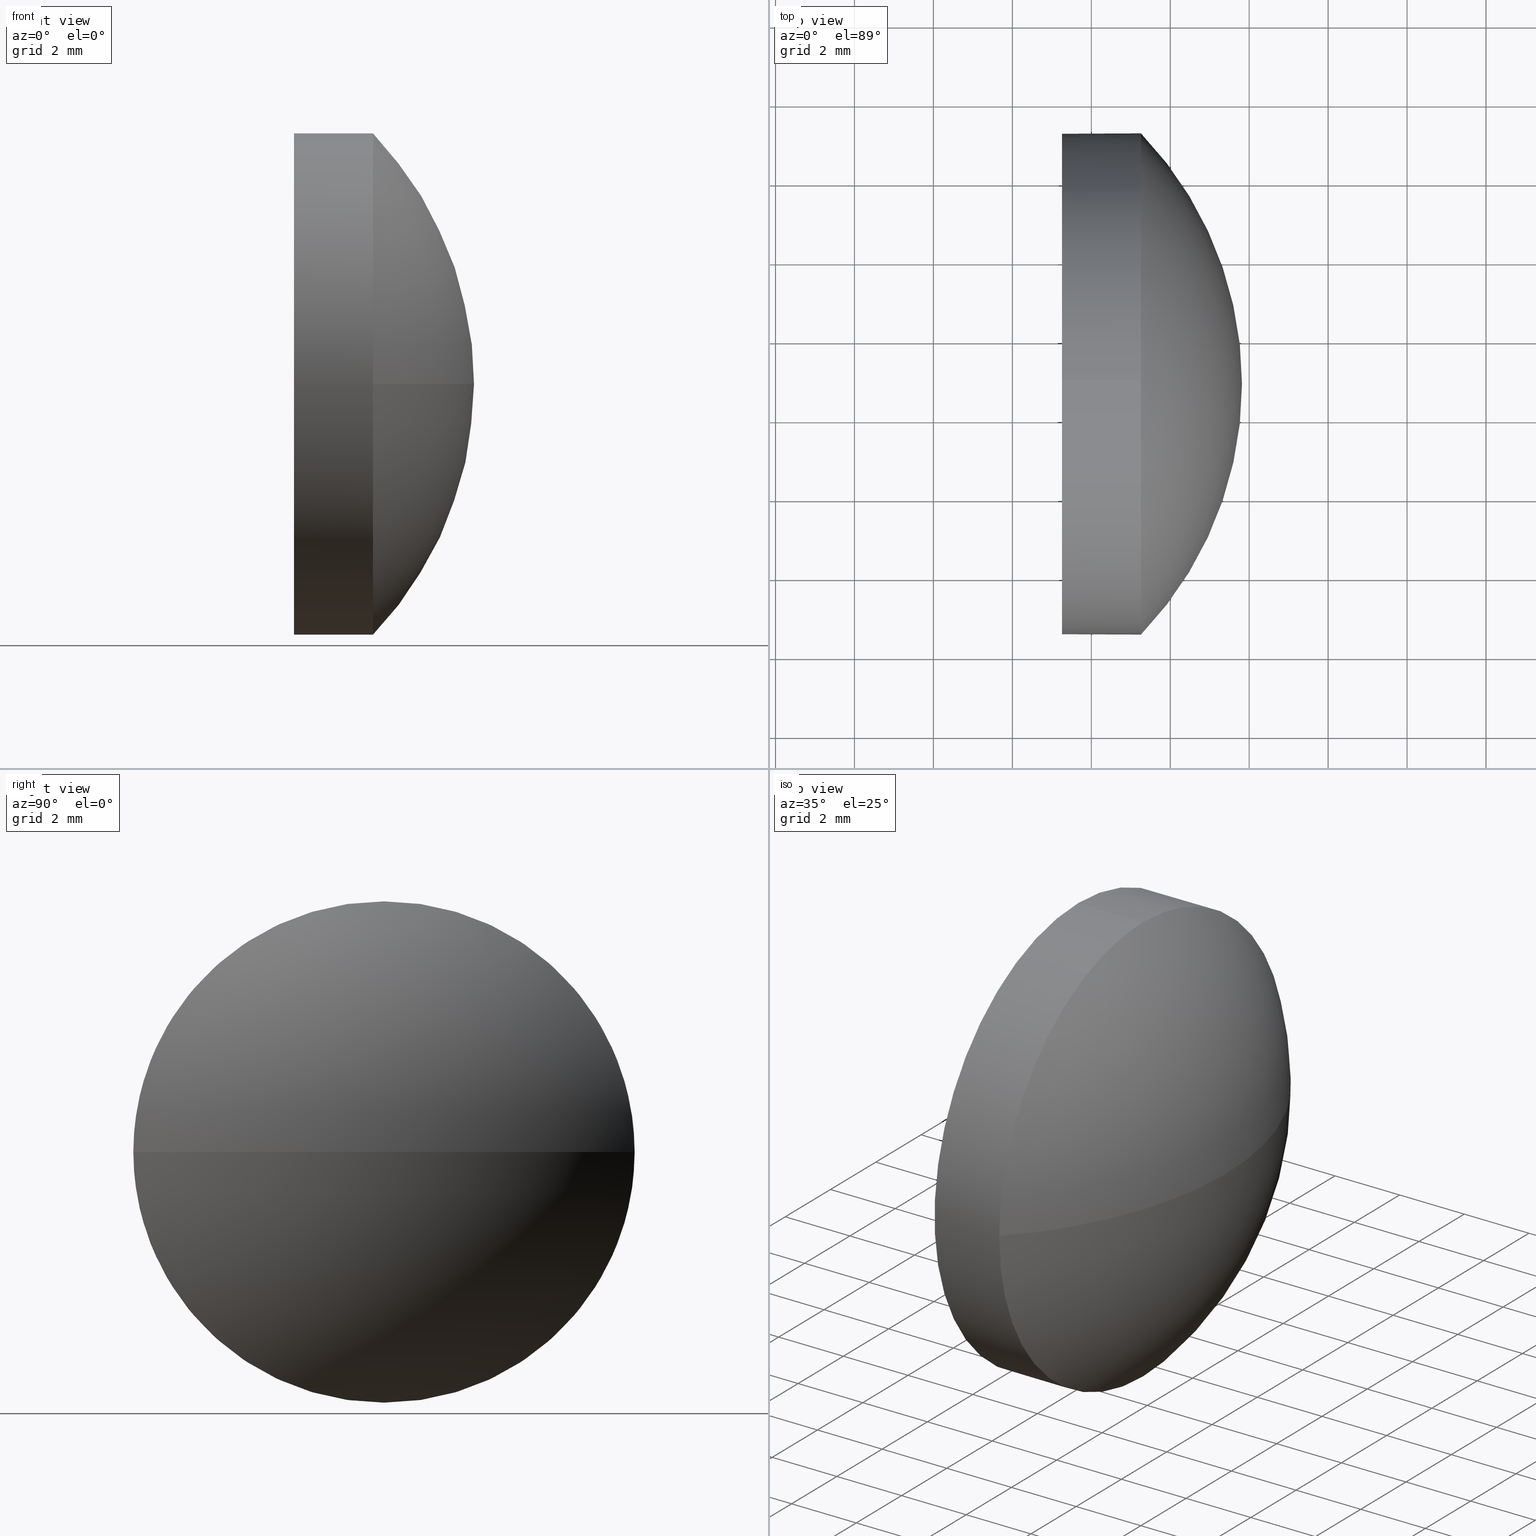
[diagram: canonical four-view strip — front | top / right | iso, engineering-drawing reading convention]
A machine part, canonical four-view strip (front | top / right | iso — engineering-drawing reading convention). The complete STEP part file that produces these views, byte-faithful:
ISO-10303-21;
HEADER;
FILE_DESCRIPTION (( 'STEP AP214' ),
    '1' );
FILE_NAME ('100363.STEP',
    '2019-06-04T02:15:34',
    ( '' ),
    ( '' ),
    'SwSTEP 2.0',
    'SolidWorks 2016',
    '' );
FILE_SCHEMA (( 'AUTOMOTIVE_DESIGN' ));
ENDSEC;

DATA;
#1 = AXIS2_PLACEMENT_3D ( 'NONE', #114, #92, #142 ) ;
#2 = FACE_OUTER_BOUND ( 'NONE', #86, .T. ) ;
#3 = CIRCLE ( 'NONE', #101, 9.155488281250011800 ) ;
#4 = ORIENTED_EDGE ( 'NONE', *, *, #14, .T. ) ;
#5 = DIRECTION ( 'NONE',  ( 1.000000000000000000, 0.0000000000000000000, 0.0000000000000000000 ) ) ;
#6 = DIRECTION ( 'NONE',  ( 0.0000000000000000000, 0.0000000000000000000, 1.000000000000000000 ) ) ;
#7 = DIRECTION ( 'NONE',  ( -1.000000000000000000, 0.0000000000000000000, 0.0000000000000000000 ) ) ;
#8 =( LENGTH_UNIT ( ) NAMED_UNIT ( * ) SI_UNIT ( .MILLI., .METRE. ) );
#9 = COLOUR_RGB ( '',1.000000000000000000, 1.000000000000000000, 1.000000000000000000 ) ;
#10 = FILL_AREA_STYLE_COLOUR ( '', #9 ) ;
#11 = DIRECTION ( 'NONE',  ( 0.0000000000000000000, -1.000000000000000000, -1.224646799147352200E-016 ) ) ;
#12 = FACE_OUTER_BOUND ( 'NONE', #107, .T. ) ;
#13 = ORIENTED_EDGE ( 'NONE', *, *, #58, .F. ) ;
#14 = EDGE_CURVE ( 'NONE', #174, #149, #123, .T. ) ;
#15 = CARTESIAN_POINT ( 'NONE',  ( 399.2579511298699800, 149.2174605340740600, 7.776507174585692200E-016 ) ) ;
#16 = CARTESIAN_POINT ( 'NONE',  ( 394.9299226398758300, 142.8674605340740400, 0.0000000000000000000 ) ) ;
#17 = DIRECTION ( 'NONE',  ( -1.000000000000000000, -0.0000000000000000000, -0.0000000000000000000 ) ) ;
#18 = DIRECTION ( 'NONE',  ( -1.000000000000000000, -0.0000000000000000000, -0.0000000000000000000 ) ) ;
#19 = CARTESIAN_POINT ( 'NONE',  ( 392.6624628486200100, 142.8674605340740700, 0.0000000000000000000 ) ) ;
#20 = EDGE_CURVE ( 'NONE', #45, #103, #57, .T. ) ;
#21 = ORIENTED_EDGE ( 'NONE', *, *, #110, .T. ) ;
#22 = DIRECTION ( 'NONE',  ( 1.000000000000000000, 0.0000000000000000000, 0.0000000000000000000 ) ) ;
#23 = CARTESIAN_POINT ( 'NONE',  ( 392.6624628486200100, 142.8674605340740700, 0.0000000000000000000 ) ) ;
#24 = AXIS2_PLACEMENT_3D ( 'NONE', #53, #52, #93 ) ;
#25 = ORIENTED_EDGE ( 'NONE', *, *, #20, .F. ) ;
#26 = ORIENTED_EDGE ( 'NONE', *, *, #141, .T. ) ;
#27 = UNCERTAINTY_MEASURE_WITH_UNIT (LENGTH_MEASURE( 1.000000000000000100E-005 ), #131, 'distance_accuracy_value', 'NONE');
#28 = AXIS2_PLACEMENT_3D ( 'NONE', #63, #17, #140 ) ;
#29 = SURFACE_STYLE_FILL_AREA ( #130 ) ;
#30 = CARTESIAN_POINT ( 'NONE',  ( 392.6624628486200100, 142.8674605340740700, 0.0000000000000000000 ) ) ;
#31 = FACE_OUTER_BOUND ( 'NONE', #162, .T. ) ;
#32 = ORIENTED_EDGE ( 'NONE', *, *, #161, .F. ) ;
#33 = DIRECTION ( 'NONE',  ( 0.0000000000000000000, 0.0000000000000000000, 1.000000000000000000 ) ) ;
#34 = CARTESIAN_POINT ( 'NONE',  ( 399.2579511298699800, 142.8674605340740400, 6.350000000000022700 ) ) ;
#35 = STYLED_ITEM ( 'NONE', ( #100 ), #186 ) ;
#36 = UNCERTAINTY_MEASURE_WITH_UNIT (LENGTH_MEASURE( 1.000000000000000100E-005 ), #172, 'distance_accuracy_value', 'NONE');
#37 = VECTOR ( 'NONE', #156, 1000.000000000000000 ) ;
#38 = CARTESIAN_POINT ( 'NONE',  ( 394.9299226398758300, 142.8674605340740400, 0.0000000000000000000 ) ) ;
#39 =( NAMED_UNIT ( * ) PLANE_ANGLE_UNIT ( ) SI_UNIT ( $, .RADIAN. ) );
#40 = SURFACE_SIDE_STYLE ('',( #29 ) ) ;
#41 = CYLINDRICAL_SURFACE ( 'NONE', #170, 6.350000000000022700 ) ;
#42 = ORIENTED_EDGE ( 'NONE', *, *, #75, .F. ) ;
#43 = CIRCLE ( 'NONE', #28, 6.350000000000022700 ) ;
#44 = AXIS2_PLACEMENT_3D ( 'NONE', #179, #95, #6 ) ;
#45 = VERTEX_POINT ( 'NONE', #34 ) ;
#46 = ADVANCED_FACE ( 'NONE', ( #12 ), #41, .T. ) ;
#47 = SPHERICAL_SURFACE ( 'NONE', #175, 9.155488281250006500 ) ;
#48 = CARTESIAN_POINT ( 'NONE',  ( 397.2579511298699800, 142.8674605340740400, 6.350000000000022700 ) ) ;
#49 = CARTESIAN_POINT ( 'NONE',  ( 399.2579511298699800, 136.5174605340740500, 0.0000000000000000000 ) ) ;
#50 = CARTESIAN_POINT ( 'NONE',  ( 392.6624628486200100, 142.8674605340740700, 0.0000000000000000000 ) ) ;
#51 = VERTEX_POINT ( 'NONE', #49 ) ;
#52 = DIRECTION ( 'NONE',  ( -1.000000000000000000, -0.0000000000000000000, -0.0000000000000000000 ) ) ;
#53 = CARTESIAN_POINT ( 'NONE',  ( 399.2579511298699800, 142.8674605340740400, 0.0000000000000000000 ) ) ;
#54 = AXIS2_PLACEMENT_3D ( 'NONE', #30, #139, #153 ) ;
#55 = FACE_OUTER_BOUND ( 'NONE', #137, .T. ) ;
#56 = CARTESIAN_POINT ( 'NONE',  ( 401.8179511298699800, 142.8674605340740700, 0.0000000000000000000 ) ) ;
#57 = LINE ( 'NONE', #96, #152 ) ;
#58 = EDGE_CURVE ( 'NONE', #51, #45, #43, .T. ) ;
#59 = PRODUCT ( '100363', '100363', '', ( #158 ) ) ;
#60 = CYLINDRICAL_SURFACE ( 'NONE', #105, 6.350000000000022700 ) ;
#61 = PRESENTATION_LAYER_ASSIGNMENT (  '', '', ( #183 ) ) ;
#62 = CARTESIAN_POINT ( 'NONE',  ( 394.9299226398758300, 142.8674605340740400, -6.350000000000022700 ) ) ;
#63 = CARTESIAN_POINT ( 'NONE',  ( 399.2579511298699800, 142.8674605340740400, 0.0000000000000000000 ) ) ;
#64 = UNCERTAINTY_MEASURE_WITH_UNIT (LENGTH_MEASURE( 1.000000000000000100E-005 ), #8, 'distance_accuracy_value', 'NONE');
#65 = DIRECTION ( 'NONE',  ( -1.000000000000000000, -0.0000000000000000000, -0.0000000000000000000 ) ) ;
#66 = PRESENTATION_LAYER_ASSIGNMENT (  '', '', ( #35 ) ) ;
#67 = APPLICATION_CONTEXT ( 'automotive_design' ) ;
#68 = SHAPE_DEFINITION_REPRESENTATION ( #128, #186 ) ;
#69 =( NAMED_UNIT ( * ) SI_UNIT ( $, .STERADIAN. ) SOLID_ANGLE_UNIT ( ) );
#70 = PRODUCT_DEFINITION_FORMATION_WITH_SPECIFIED_SOURCE ( '�κ�', '', #59, .NOT_KNOWN. ) ;
#71 = CIRCLE ( 'NONE', #97, 6.350000000000022700 ) ;
#72 = ORIENTED_EDGE ( 'NONE', *, *, #14, .F. ) ;
#73 = PRODUCT_DEFINITION_CONTEXT ( 'detailed design', #145, 'design' ) ;
#74 =( NAMED_UNIT ( * ) SI_UNIT ( $, .STERADIAN. ) SOLID_ANGLE_UNIT ( ) );
#75 = EDGE_CURVE ( 'NONE', #89, #103, #134, .T. ) ;
#76 = ADVANCED_FACE ( 'NONE', ( #31 ), #60, .T. ) ;
#77 = AXIS2_PLACEMENT_3D ( 'NONE', #126, #144, #22 ) ;
#78 = PRODUCT_RELATED_PRODUCT_CATEGORY ( 'part', '', ( #59 ) ) ;
#79 = CARTESIAN_POINT ( 'NONE',  ( 397.2579511298699800, 142.8674605340740400, 0.0000000000000000000 ) ) ;
#80 = DIRECTION ( 'NONE',  ( -1.000000000000000000, -0.0000000000000000000, -0.0000000000000000000 ) ) ;
#81 = CARTESIAN_POINT ( 'NONE',  ( 399.2579511298699800, 142.8674605340740400, 0.0000000000000000000 ) ) ;
#82 =( NAMED_UNIT ( * ) PLANE_ANGLE_UNIT ( ) SI_UNIT ( $, .RADIAN. ) );
#83 = ORIENTED_EDGE ( 'NONE', *, *, #141, .F. ) ;
#84 =( NAMED_UNIT ( * ) PLANE_ANGLE_UNIT ( ) SI_UNIT ( $, .RADIAN. ) );
#85 = ORIENTED_EDGE ( 'NONE', *, *, #161, .T. ) ;
#86 = EDGE_LOOP ( 'NONE', ( #168, #124 ) ) ;
#87 = PRODUCT_DEFINITION ( 'δ֪', '', #70, #73 ) ;
#88 = AXIS2_PLACEMENT_3D ( 'NONE', #23, #184, #11 ) ;
#89 = VERTEX_POINT ( 'NONE', #164 ) ;
#90 = MECHANICAL_DESIGN_GEOMETRIC_PRESENTATION_REPRESENTATION (  '', ( #183 ), #129 ) ;
#91 = ORIENTED_EDGE ( 'NONE', *, *, #150, .T. ) ;
#92 = DIRECTION ( 'NONE',  ( -1.000000000000000000, -0.0000000000000000000, -0.0000000000000000000 ) ) ;
#93 = DIRECTION ( 'NONE',  ( 0.0000000000000000000, 0.0000000000000000000, 1.000000000000000000 ) ) ;
#94 = DIRECTION ( 'NONE',  ( 0.0000000000000000000, 0.0000000000000000000, 1.000000000000000000 ) ) ;
#95 = DIRECTION ( 'NONE',  ( -1.000000000000000000, -0.0000000000000000000, -0.0000000000000000000 ) ) ;
#96 = CARTESIAN_POINT ( 'NONE',  ( 394.9299226398758300, 142.8674605340740400, 6.350000000000022700 ) ) ;
#97 = AXIS2_PLACEMENT_3D ( 'NONE', #81, #65, #127 ) ;
#98 = ORIENTED_EDGE ( 'NONE', *, *, #110, .F. ) ;
#99 = SURFACE_STYLE_USAGE ( .BOTH. , #171 ) ;
#100 = PRESENTATION_STYLE_ASSIGNMENT (( #169 ) ) ;
#101 = AXIS2_PLACEMENT_3D ( 'NONE', #19, #155, #7 ) ;
#102 = CIRCLE ( 'NONE', #44, 6.350000000000022700 ) ;
#103 = VERTEX_POINT ( 'NONE', #48 ) ;
#104 = APPLICATION_PROTOCOL_DEFINITION ( 'draft international standard', 'automotive_design', 1998, #67 ) ;
#105 = AXIS2_PLACEMENT_3D ( 'NONE', #38, #80, #33 ) ;
#106 = ADVANCED_FACE ( 'NONE', ( #55 ), #47, .T. ) ;
#107 = EDGE_LOOP ( 'NONE', ( #4, #91, #135, #25, #21 ) ) ;
#108 = MECHANICAL_DESIGN_GEOMETRIC_PRESENTATION_REPRESENTATION (  '', ( #35 ), #136 ) ;
#109 = PRESENTATION_STYLE_ASSIGNMENT (( #99 ) ) ;
#110 = EDGE_CURVE ( 'NONE', #45, #174, #102, .T. ) ;
#111 = EDGE_CURVE ( 'NONE', #103, #89, #151, .T. ) ;
#112 = EDGE_LOOP ( 'NONE', ( #32, #133, #83, #72 ) ) ;
#113 = DIRECTION ( 'NONE',  ( 0.0000000000000000000, 0.0000000000000000000, -1.000000000000000000 ) ) ;
#114 = CARTESIAN_POINT ( 'NONE',  ( 397.2579511298699800, 142.8674605340740400, 0.0000000000000000000 ) ) ;
#115 = DIRECTION ( 'NONE',  ( -1.000000000000000000, -0.0000000000000000000, -0.0000000000000000000 ) ) ;
#116 = FILL_AREA_STYLE_COLOUR ( '', #167 ) ;
#117 = EDGE_CURVE ( 'NONE', #163, #51, #3, .T. ) ;
#118 = SPHERICAL_SURFACE ( 'NONE', #54, 9.155488281250006500 ) ;
#119 =( NAMED_UNIT ( * ) SI_UNIT ( $, .STERADIAN. ) SOLID_ANGLE_UNIT ( ) );
#120 =( GEOMETRIC_REPRESENTATION_CONTEXT ( 3 ) GLOBAL_UNCERTAINTY_ASSIGNED_CONTEXT ( ( #27 ) ) GLOBAL_UNIT_ASSIGNED_CONTEXT ( ( #131, #84, #74 ) ) REPRESENTATION_CONTEXT ( 'NONE', 'WORKASPACE' ) );
#121 = FACE_OUTER_BOUND ( 'NONE', #112, .T. ) ;
#122 = ORIENTED_EDGE ( 'NONE', *, *, #20, .T. ) ;
#123 = CIRCLE ( 'NONE', #24, 6.350000000000022700 ) ;
#124 = ORIENTED_EDGE ( 'NONE', *, *, #75, .T. ) ;
#125 = CARTESIAN_POINT ( 'NONE',  ( 399.2579511298699800, 142.8674605340740400, -6.350000000000022700 ) ) ;
#126 = CARTESIAN_POINT ( 'NONE',  ( 0.0000000000000000000, 0.0000000000000000000, 0.0000000000000000000 ) ) ;
#127 = DIRECTION ( 'NONE',  ( 0.0000000000000000000, 0.0000000000000000000, 1.000000000000000000 ) ) ;
#128 = PRODUCT_DEFINITION_SHAPE ( 'NONE', 'NONE',  #87 ) ;
#129 =( GEOMETRIC_REPRESENTATION_CONTEXT ( 3 ) GLOBAL_UNCERTAINTY_ASSIGNED_CONTEXT ( ( #64 ) ) GLOBAL_UNIT_ASSIGNED_CONTEXT ( ( #8, #82, #119 ) ) REPRESENTATION_CONTEXT ( 'NONE', 'WORKASPACE' ) );
#130 = FILL_AREA_STYLE ('',( #116 ) ) ;
#131 =( LENGTH_UNIT ( ) NAMED_UNIT ( * ) SI_UNIT ( .MILLI., .METRE. ) );
#132 = FILL_AREA_STYLE ('',( #10 ) ) ;
#133 = ORIENTED_EDGE ( 'NONE', *, *, #117, .T. ) ;
#134 = CIRCLE ( 'NONE', #1, 6.350000000000022700 ) ;
#135 = ORIENTED_EDGE ( 'NONE', *, *, #111, .F. ) ;
#136 =( GEOMETRIC_REPRESENTATION_CONTEXT ( 3 ) GLOBAL_UNCERTAINTY_ASSIGNED_CONTEXT ( ( #36 ) ) GLOBAL_UNIT_ASSIGNED_CONTEXT ( ( #172, #39, #69 ) ) REPRESENTATION_CONTEXT ( 'NONE', 'WORKASPACE' ) );
#137 = EDGE_LOOP ( 'NONE', ( #185, #85, #98, #13 ) ) ;
#138 = ORIENTED_EDGE ( 'NONE', *, *, #58, .T. ) ;
#139 = DIRECTION ( 'NONE',  ( 0.0000000000000000000, 0.0000000000000000000, 1.000000000000000000 ) ) ;
#140 = DIRECTION ( 'NONE',  ( 0.0000000000000000000, 0.0000000000000000000, 1.000000000000000000 ) ) ;
#141 = EDGE_CURVE ( 'NONE', #149, #51, #71, .T. ) ;
#142 = DIRECTION ( 'NONE',  ( 0.0000000000000000000, 0.0000000000000000000, 1.000000000000000000 ) ) ;
#143 = CIRCLE ( 'NONE', #88, 9.155488281250011800 ) ;
#144 = DIRECTION ( 'NONE',  ( 0.0000000000000000000, 0.0000000000000000000, 1.000000000000000000 ) ) ;
#145 = APPLICATION_CONTEXT ( 'automotive_design' ) ;
#146 = SURFACE_STYLE_FILL_AREA ( #132 ) ;
#147 = ADVANCED_FACE ( 'NONE', ( #121 ), #118, .T. ) ;
#148 = ADVANCED_FACE ( 'NONE', ( #2 ), #182, .F. ) ;
#149 = VERTEX_POINT ( 'NONE', #125 ) ;
#150 = EDGE_CURVE ( 'NONE', #149, #89, #177, .T. ) ;
#151 = CIRCLE ( 'NONE', #160, 6.350000000000022700 ) ;
#152 = VECTOR ( 'NONE', #18, 1000.000000000000000 ) ;
#153 = DIRECTION ( 'NONE',  ( 0.0000000000000000000, -1.000000000000000000, 0.0000000000000000000 ) ) ;
#154 = DIRECTION ( 'NONE',  ( 0.0000000000000000000, 0.0000000000000000000, 1.000000000000000000 ) ) ;
#155 = DIRECTION ( 'NONE',  ( 0.0000000000000000000, 0.0000000000000000000, -1.000000000000000000 ) ) ;
#156 = DIRECTION ( 'NONE',  ( -1.000000000000000000, -0.0000000000000000000, -0.0000000000000000000 ) ) ;
#157 = CLOSED_SHELL ( 'NONE', ( #46, #106, #147, #76, #148 ) ) ;
#158 = PRODUCT_CONTEXT ( 'NONE', #67, 'mechanical' ) ;
#159 = APPLICATION_PROTOCOL_DEFINITION ( 'draft international standard', 'automotive_design', 1998, #145 ) ;
#160 = AXIS2_PLACEMENT_3D ( 'NONE', #166, #115, #181 ) ;
#161 = EDGE_CURVE ( 'NONE', #163, #174, #143, .T. ) ;
#162 = EDGE_LOOP ( 'NONE', ( #178, #26, #138, #122, #42 ) ) ;
#163 = VERTEX_POINT ( 'NONE', #56 ) ;
#164 = CARTESIAN_POINT ( 'NONE',  ( 397.2579511298699800, 142.8674605340740400, -6.350000000000022700 ) ) ;
#165 = DIRECTION ( 'NONE',  ( 0.0000000000000000000, -1.000000000000000000, 0.0000000000000000000 ) ) ;
#166 = CARTESIAN_POINT ( 'NONE',  ( 397.2579511298699800, 142.8674605340740400, 0.0000000000000000000 ) ) ;
#167 = COLOUR_RGB ( '',1.000000000000000000, 1.000000000000000000, 1.000000000000000000 ) ;
#168 = ORIENTED_EDGE ( 'NONE', *, *, #111, .T. ) ;
#169 = SURFACE_STYLE_USAGE ( .BOTH. , #40 ) ;
#170 = AXIS2_PLACEMENT_3D ( 'NONE', #16, #180, #94 ) ;
#171 = SURFACE_SIDE_STYLE ('',( #146 ) ) ;
#172 =( LENGTH_UNIT ( ) NAMED_UNIT ( * ) SI_UNIT ( .MILLI., .METRE. ) );
#173 = AXIS2_PLACEMENT_3D ( 'NONE', #79, #5, #113 ) ;
#174 = VERTEX_POINT ( 'NONE', #15 ) ;
#175 = AXIS2_PLACEMENT_3D ( 'NONE', #50, #154, #165 ) ;
#176 = MANIFOLD_SOLID_BREP ( '��ת1', #157 ) ;
#177 = LINE ( 'NONE', #62, #37 ) ;
#178 = ORIENTED_EDGE ( 'NONE', *, *, #150, .F. ) ;
#179 = CARTESIAN_POINT ( 'NONE',  ( 399.2579511298699800, 142.8674605340740400, 0.0000000000000000000 ) ) ;
#180 = DIRECTION ( 'NONE',  ( -1.000000000000000000, -0.0000000000000000000, -0.0000000000000000000 ) ) ;
#181 = DIRECTION ( 'NONE',  ( 0.0000000000000000000, 0.0000000000000000000, 1.000000000000000000 ) ) ;
#182 = PLANE ( 'NONE',  #173 ) ;
#183 = STYLED_ITEM ( 'NONE', ( #109 ), #176 ) ;
#184 = DIRECTION ( 'NONE',  ( 0.0000000000000000000, -1.224646799147353200E-016, 1.000000000000000000 ) ) ;
#185 = ORIENTED_EDGE ( 'NONE', *, *, #117, .F. ) ;
#186 = ADVANCED_BREP_SHAPE_REPRESENTATION ( '100363', ( #176, #77 ), #120 ) ;
ENDSEC;
END-ISO-10303-21;
